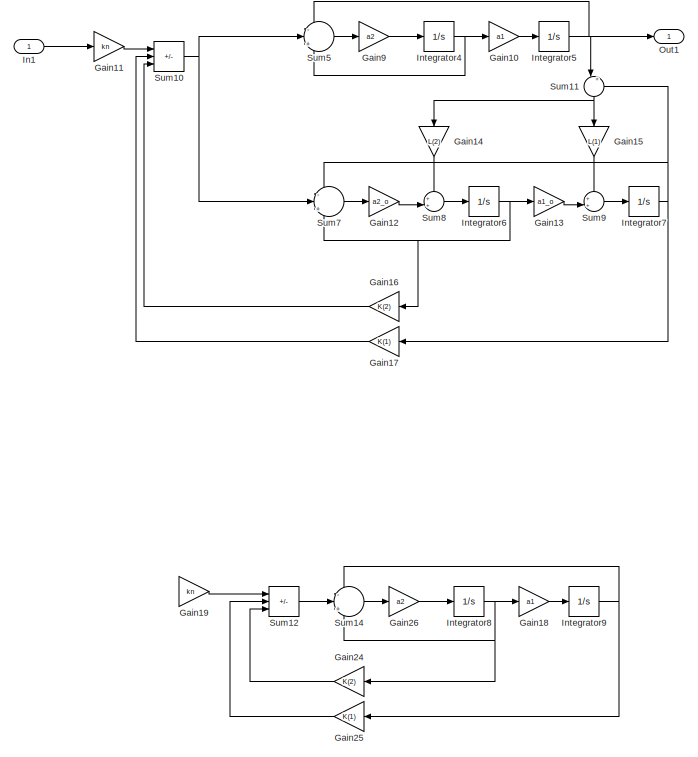
[diagram: root canvas - part 1/2, right side, full height]
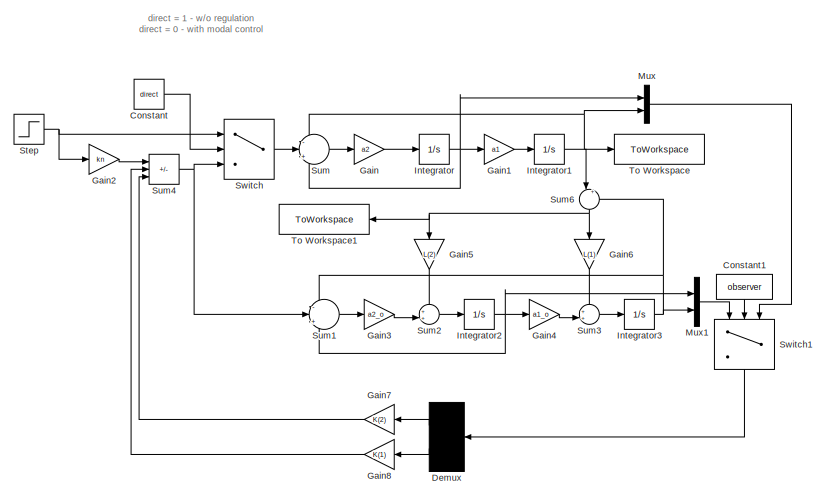
[diagram: root canvas - part 2/2, middle left region]
MODEL slx_84feff63bd76
KIND model
CONFIG AbsTol = auto
CONFIG EnableMultiTasking = off
CONFIG FixedStep = auto
CONFIG MaxStep = 1e-2
CONFIG MinStep = auto
CONFIG RelTol = 1e-3
CONFIG SampleTimeConstraint = Unconstrained
CONFIG SolverName = VariableStepAuto
CONFIG StartTime = 0.0
CONFIG StopTime = t
BLOCK [Constant] Constant
  Value = direct
BLOCK [Constant] Constant1
  NameLocation = left
  Value = observer
BLOCK [Demux] Demux
  DisplayOption = none
  NameLocation = top
  Outputs = 2
  Ports = [1, 2]
BLOCK [Gain] Gain
  Gain = a2
BLOCK [Gain] Gain1
  Gain = a1
BLOCK [Gain] Gain10
  Gain = a1
BLOCK [Gain] Gain11
  Gain = kn
BLOCK [Gain] Gain12
  Gain = a2_o
BLOCK [Gain] Gain13
  Gain = a1_o
BLOCK [Gain] Gain14
  Gain = L(2)
  NameLocation = left
BLOCK [Gain] Gain15
  Gain = L(1)
  NameLocation = left
BLOCK [Gain] Gain16
  Gain = K(2)
  NameLocation = top
BLOCK [Gain] Gain17
  Gain = K(1)
  NameLocation = top
BLOCK [Gain] Gain18
  Commented = on
  Gain = a1
BLOCK [Gain] Gain19
  Commented = on
  Gain = kn
BLOCK [Gain] Gain2
  Gain = kn
BLOCK [Gain] Gain24
  Commented = on
  Gain = K(2)
  NameLocation = top
BLOCK [Gain] Gain25
  Commented = on
  Gain = K(1)
  NameLocation = top
BLOCK [Gain] Gain26
  Commented = on
  Gain = a2
BLOCK [Gain] Gain3
  Gain = a2_o
BLOCK [Gain] Gain4
  Gain = a1_o
BLOCK [Gain] Gain5
  Gain = L(2)
  NameLocation = left
BLOCK [Gain] Gain6
  Gain = L(1)
  NameLocation = left
BLOCK [Gain] Gain7
  Gain = K(2)
  NameLocation = top
BLOCK [Gain] Gain8
  Gain = K(1)
  NameLocation = top
BLOCK [Gain] Gain9
  Gain = a2
BLOCK [Inport] In1
BLOCK [Integrator] Integrator
  InitialCondition = x1_0
  Ports = [1, 1]
BLOCK [Integrator] Integrator1
  InitialCondition = x2_0
  Ports = [1, 1]
BLOCK [Integrator] Integrator2
  Ports = [1, 1]
BLOCK [Integrator] Integrator3
  Ports = [1, 1]
BLOCK [Integrator] Integrator4
  InitialCondition = x1_0
  Ports = [1, 1]
BLOCK [Integrator] Integrator5
  InitialCondition = x2_0
  Ports = [1, 1]
BLOCK [Integrator] Integrator6
  Ports = [1, 1]
BLOCK [Integrator] Integrator7
  Ports = [1, 1]
BLOCK [Integrator] Integrator8
  Commented = on
  InitialCondition = x1_0
  Ports = [1, 1]
BLOCK [Integrator] Integrator9
  Commented = on
  InitialCondition = x2_0
  Ports = [1, 1]
BLOCK [Mux] Mux
  DisplayOption = bar
  Inputs = 2
  Ports = [2, 1]
BLOCK [Mux] Mux1
  DisplayOption = bar
  Inputs = 2
  Ports = [2, 1]
BLOCK [Outport] Out1
BLOCK [Step] Step
  SampleTime = 0
  Time = 0
BLOCK [Sum] Sum
  Inputs = -|+|-
  Ports = [3, 1]
BLOCK [Sum] Sum1
  Inputs = -|+|-
  Ports = [3, 1]
BLOCK [Sum] Sum10
  IconShape = rectangular
  Inputs = +--
  Ports = [3, 1]
BLOCK [Sum] Sum11
  Inputs = |+-
  NameLocation = left
  Ports = [2, 1]
BLOCK [Sum] Sum12
  Commented = on
  IconShape = rectangular
  Inputs = +--
  Ports = [3, 1]
BLOCK [Sum] Sum14
  Commented = on
  Inputs = -|+|-
  Ports = [3, 1]
BLOCK [Sum] Sum2
  Inputs = ++|
  NameLocation = top
  Ports = [2, 1]
BLOCK [Sum] Sum3
  Inputs = ++|
  NameLocation = top
  Ports = [2, 1]
BLOCK [Sum] Sum4
  IconShape = rectangular
  Inputs = +--
  Ports = [3, 1]
BLOCK [Sum] Sum5
  Inputs = -|+|-
  Ports = [3, 1]
BLOCK [Sum] Sum6
  Inputs = |+-
  NameLocation = left
  Ports = [2, 1]
BLOCK [Sum] Sum7
  Inputs = -|+|-
  Ports = [3, 1]
BLOCK [Sum] Sum8
  Inputs = ++|
  NameLocation = top
  Ports = [2, 1]
BLOCK [Sum] Sum9
  Inputs = ++|
  NameLocation = top
  Ports = [2, 1]
BLOCK [Switch] Switch
  Criteria = u2 > Threshold
  InputSameDT = off
  SaturateOnIntegerOverflow = off
BLOCK [Switch] Switch1
  Criteria = u2 > Threshold
  InputSameDT = off
  NameLocation = left
  SaturateOnIntegerOverflow = off
BLOCK [ToWorkspace] To Workspace
  FixptAsFi = on
  MaxDataPoints = inf
  Ports = [1]
  SampleTime = -1
  SaveFormat = Timeseries
  VariableName = out
BLOCK [ToWorkspace] To Workspace1
  FixptAsFi = on
  MaxDataPoints = inf
  NameLocation = top
  Ports = [1]
  SampleTime = -1
  SaveFormat = Timeseries
  VariableName = observer_error
ANNOTATION (root): direct = 1 - w/o regulation direct = 0 - with modal control
LINE Constant1:1 -> Switch1:2
LINE Constant:1 -> Switch:2
LINE Demux:1 -> Gain7:1
LINE Demux:2 -> Gain8:1
LINE Gain10:1 -> Integrator5:1
LINE Gain11:1 -> Sum10:1
LINE Gain12:1 -> Sum8:2
LINE Gain13:1 -> Sum9:2
LINE Gain14:1 -> Sum8:1
LINE Gain15:1 -> Sum9:1
LINE Gain16:1 -> Sum10:3
LINE Gain17:1 -> Sum10:2
LINE Gain18:1 -> Integrator9:1
LINE Gain19:1 -> Sum12:1
LINE Gain1:1 -> Integrator1:1
LINE Gain24:1 -> Sum12:3
LINE Gain25:1 -> Sum12:2
LINE Gain26:1 -> Integrator8:1
LINE Gain2:1 -> Sum4:1
LINE Gain3:1 -> Sum2:2
LINE Gain4:1 -> Sum3:2
LINE Gain5:1 -> Sum2:1
LINE Gain6:1 -> Sum3:1
LINE Gain7:1 -> Sum4:3
LINE Gain8:1 -> Sum4:2
LINE Gain9:1 -> Integrator4:1
LINE Gain:1 -> Integrator:1
LINE In1:1 -> Gain11:1
NET Integrator1:1 -> Mux:2, Sum6:1, Sum:1, To Workspace:1
NET Integrator2:1 -> Gain4:1, Mux1:1, Sum1:3
NET Integrator3:1 -> Mux1:2, Sum1:1, Sum6:2
NET Integrator4:1 -> Gain10:1, Sum5:3
NET Integrator5:1 -> Out1:1, Sum11:1, Sum5:1
NET Integrator6:1 -> Gain13:1, Gain16:1, Sum7:3
NET Integrator7:1 -> Gain17:1, Sum11:2, Sum7:1
NET Integrator8:1 -> Gain18:1, Gain24:1, Sum14:3
NET Integrator9:1 -> Gain25:1, Sum14:1
NET Integrator:1 -> Gain1:1, Mux:1, Sum:3
LINE Mux1:1 -> Switch1:1
LINE Mux:1 -> Switch1:3
NET Step:1 -> Gain2:1, Switch:1
NET Sum10:1 -> Sum5:2, Sum7:2
NET Sum11:1 -> Gain14:1, Gain15:1
LINE Sum12:1 -> Sum14:2
LINE Sum14:1 -> Gain26:1
LINE Sum1:1 -> Gain3:1
LINE Sum2:1 -> Integrator2:1
LINE Sum3:1 -> Integrator3:1
NET Sum4:1 -> Sum1:2, Switch:3
LINE Sum5:1 -> Gain9:1
NET Sum6:1 -> Gain5:1, Gain6:1, To Workspace1:1
LINE Sum7:1 -> Gain12:1
LINE Sum8:1 -> Integrator6:1
LINE Sum9:1 -> Integrator7:1
LINE Sum:1 -> Gain:1
LINE Switch1:1 -> Demux:1
LINE Switch:1 -> Sum:2
note: NET lines group one-source signal fan-out (src -> all destinations, sorted); 1:1 wires keep LINE
